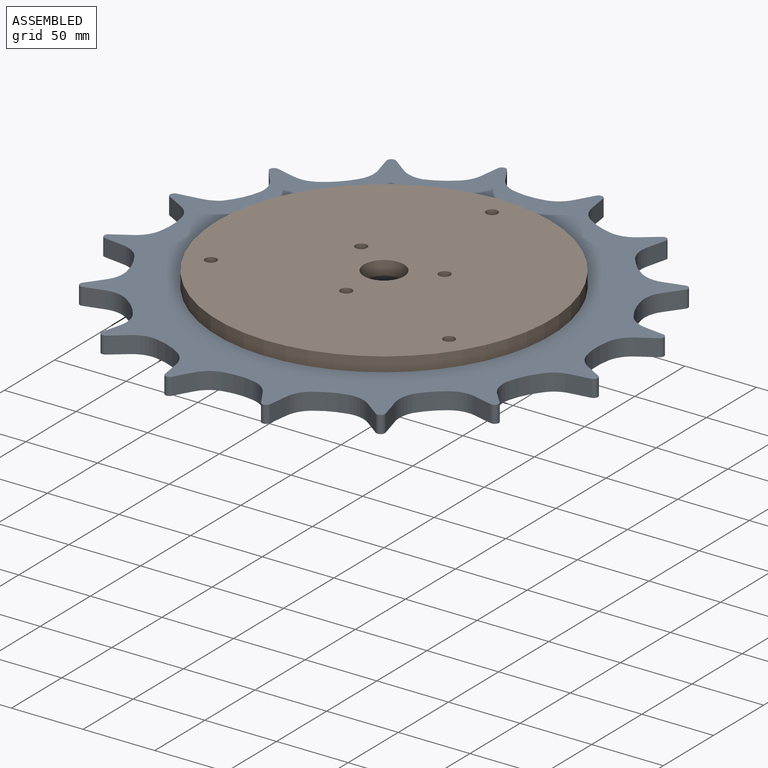
[diagram: assembled view]
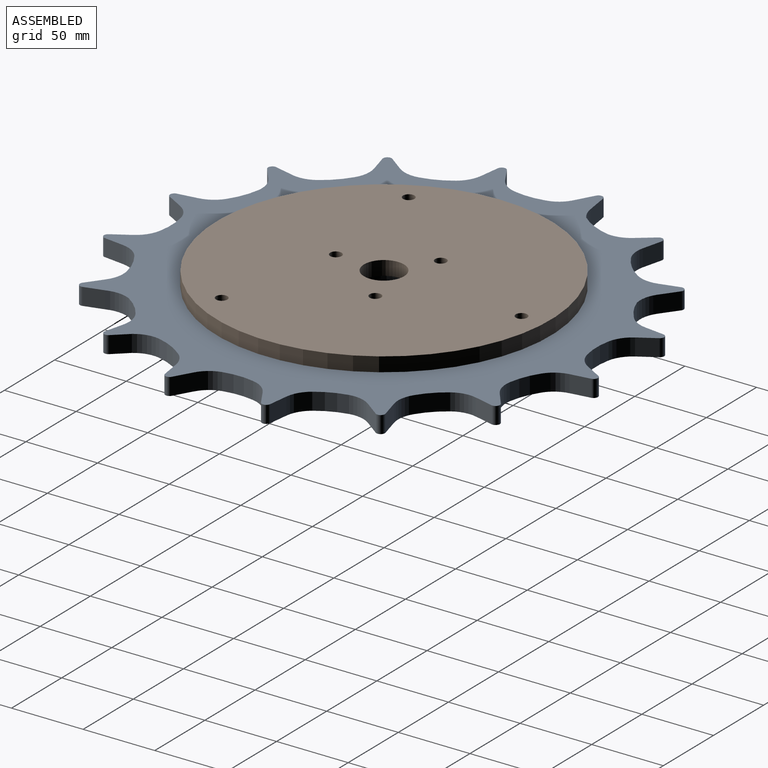
[diagram: assembled view, second angle]
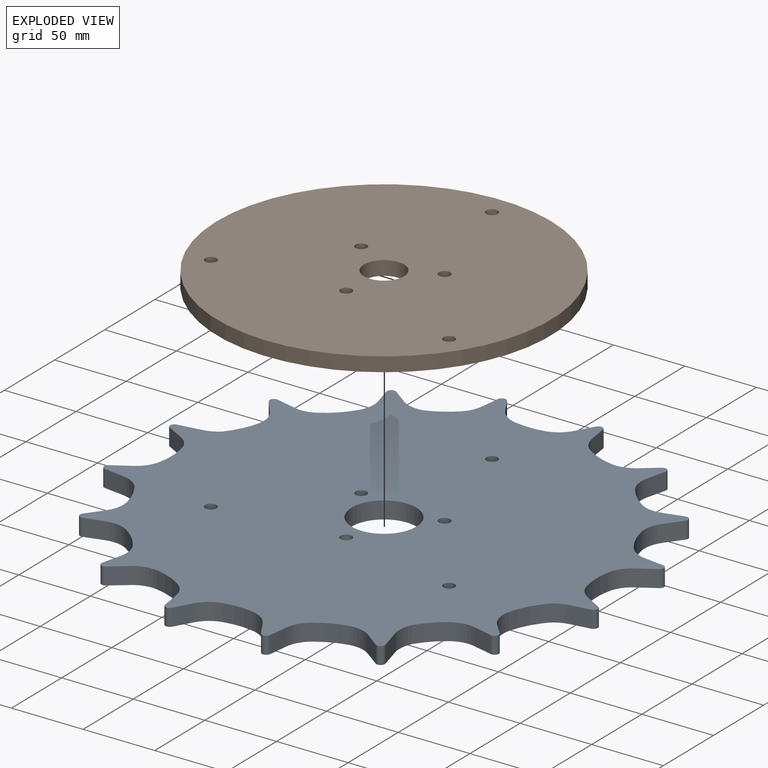
[diagram: exploded view]
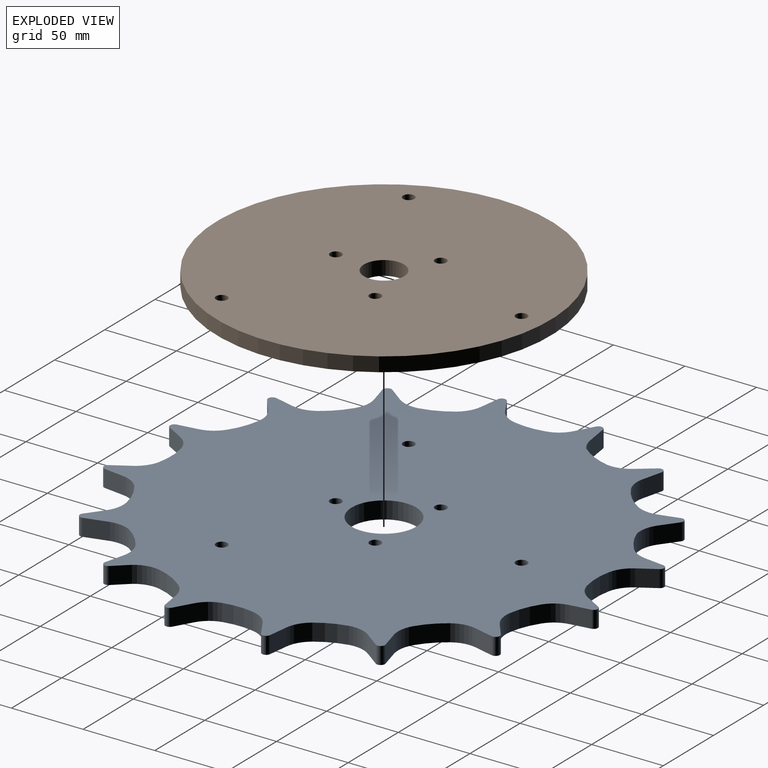
[diagram: exploded view, second angle]
ASSEMBLY  parts=2 mates=2
PART A: 105 faces, bbox 348.9x12x344.8 mm
  f0: plane 13.98x12mm, normal (0.06,0,1), area 168mm2, adj f1,f102,f103,f104
  f1: cylinder r=3mm len=12mm, axis (0,1,0), area 89.1mm2, adj f0,f2,f103,f104
  f2: plane 12x10.47mm, normal (-0.66,0,-0.75), area 168mm2, adj f1,f3,f103,f104
  f3: cylinder r=20mm len=14.62mm, axis (0,1,0), area 198.7mm2, adj f2,f4,f103,f104
  f4: cylinder r=50.8mm len=21.12mm, axis (0,1,0), area 260.3mm2, adj f3,f5,f103,f104
  f5: cylinder r=20mm len=12mm, axis (0,1,0), area 198.7mm2, adj f4,f6,f103,f104
  f6: plane 13.23x12mm, normal (-0.33,0,0.95), area 168mm2, adj f5,f7,f103,f104
  f7: cylinder r=3mm len=12mm, axis (0,1,0), area 89.1mm2, adj f6,f8,f103,f104
  f8: plane 13.23x12mm, normal (-0.33,0,-0.95), area 168mm2, adj f7,f9,f103,f104
  f9: cylinder r=20mm len=12mm, axis (0,1,0), area 198.7mm2, adj f8,f10,f103,f104
  f10: cylinder r=50.8mm len=21.12mm, axis (0,1,0), area 260.3mm2, adj f9,f11,f103,f104
  f11: cylinder r=20mm len=14.62mm, axis (0,1,0), area 198.7mm2, adj f10,f12,f103,f104
  f12: plane 12x10.47mm, normal (-0.66,0,0.75), area 168mm2, adj f11,f13,f103,f104
  f13: cylinder r=3mm len=12mm, axis (0,1,0), area 89.1mm2, adj f12,f14,f103,f104
  f14: plane 13.98x12mm, normal (0.06,0,-1), area 168mm2, adj f13,f15,f103,f104
  f15: cylinder r=20mm len=15.09mm, axis (0,1,0), area 198.7mm2, adj f14,f16,f103,f104
  f16: cylinder r=50.8mm len=17.9mm, axis (0,1,0), area 260.3mm2, adj f15,f17,f103,f104
  f17: cylinder r=20mm len=16.08mm, axis (0,1,0), area 198.7mm2, adj f16,f18,f103,f104
  f18: plane 12.59x12mm, normal (-0.9,0,0.44), area 168mm2, adj f17,f19,f103,f104
  f19: cylinder r=3mm len=12mm, axis (0,1,0), area 89.1mm2, adj f18,f20,f103,f104
  f20: plane 12.59x12mm, normal (0.44,0,-0.9), area 168mm2, adj f19,f21,f103,f104
  f21: cylinder r=20mm len=16.08mm, axis (0,1,0), area 198.7mm2, adj f20,f22,f103,f104
  f22: cylinder r=50.8mm len=17.9mm, axis (0,1,0), area 260.3mm2, adj f21,f23,f103,f104
  f23: cylinder r=20mm len=15.09mm, axis (0,1,0), area 198.7mm2, adj f22,f24,f103,f104
  f24: plane 13.98x12mm, normal (-1,0,0.06), area 168mm2, adj f23,f25,f103,f104
  f25: cylinder r=3mm len=12mm, axis (0,1,0), area 89.1mm2, adj f24,f26,f103,f104
  f26: plane 12x10.47mm, normal (0.75,0,-0.66), area 168mm2, adj f25,f27,f103,f104
  f27: cylinder r=21.66mm len=14.62mm, axis (0,1,0), area 207.7mm2, adj f26,f28,f103,f104
  f28: cylinder r=50.8mm len=21.12mm, axis (0,1,0), area 260.3mm2, adj f27,f29,f103,f104
  f29: cylinder r=20mm len=12mm, axis (0,1,0), area 198.7mm2, adj f28,f30,f103,f104
  f30: plane 13.23x12mm, normal (-0.95,0,-0.33), area 168mm2, adj f29,f31,f103,f104
  f31: cylinder r=3mm len=12mm, axis (0,1,0), area 89.1mm2, adj f30,f32,f103,f104
  f32: plane 12.91x12mm, normal (0.97,0,-0.25), area 160.2mm2, adj f31,f33,f103,f104
  f33: cylinder r=20mm len=12.13mm, axis (0,1,0), area 212.6mm2, adj f32,f34,f103,f104
  f34: cylinder r=50.8mm len=21.12mm, axis (0,1,0), area 257.1mm2, adj f33,f35,f103,f104
  f35: cylinder r=20mm len=14.62mm, axis (0,1,0), area 198.7mm2, adj f34,f36,f103,f104
  f36: plane 12x10.47mm, normal (-0.75,0,-0.66), area 168mm2, adj f35,f37,f103,f104
  f37: cylinder r=3mm len=12mm, axis (0,1,0), area 89.1mm2, adj f36,f38,f103,f104
  f38: plane 13.98x12mm, normal (1,0,0.06), area 168mm2, adj f37,f39,f103,f104
  f39: cylinder r=20mm len=15.09mm, axis (0,1,0), area 198.7mm2, adj f38,f40,f103,f104
  f40: cylinder r=50.8mm len=17.9mm, axis (0,1,0), area 260.3mm2, adj f39,f41,f103,f104
  f41: cylinder r=20mm len=16.08mm, axis (0,1,0), area 198.7mm2, adj f40,f42,f103,f104
  f42: plane 12.59x12mm, normal (-0.44,0,-0.9), area 168mm2, adj f41,f43,f103,f104
  f43: cylinder r=3mm len=12mm, axis (0,1,0), area 89.1mm2, adj f42,f44,f103,f104
  f44: plane 12.59x12mm, normal (0.9,0,0.44), area 168mm2, adj f43,f45,f103,f104
  f45: cylinder r=20mm len=16.08mm, axis (0,1,0), area 198.7mm2, adj f44,f46,f103,f104
  f46: cylinder r=50.8mm len=17.9mm, axis (0,1,0), area 260.3mm2, adj f45,f47,f103,f104
  f47: cylinder r=20mm len=15.09mm, axis (0,1,0), area 198.7mm2, adj f46,f48,f103,f104
  f48: plane 13.98x12mm, normal (-0.06,0,-1), area 168mm2, adj f47,f49,f103,f104
  f49: cylinder r=3mm len=12mm, axis (0,1,0), area 89.1mm2, adj f48,f50,f103,f104
  f50: plane 12x10.47mm, normal (0.66,0,0.75), area 168mm2, adj f49,f51,f103,f104
  f51: cylinder r=20mm len=14.62mm, axis (0,1,0), area 198.7mm2, adj f50,f52,f103,f104
  f52: cylinder r=50.8mm len=21.12mm, axis (0,1,0), area 260.3mm2, adj f51,f53,f103,f104
  f53: cylinder r=20mm len=12mm, axis (0,1,0), area 198.7mm2, adj f52,f54,f103,f104
  f54: plane 13.23x12mm, normal (0.33,0,-0.95), area 168mm2, adj f53,f55,f103,f104
  f55: cylinder r=3mm len=12mm, axis (0,1,0), area 89.1mm2, adj f54,f56,f103,f104
  f56: plane 13.23x12mm, normal (0.33,0,0.95), area 168mm2, adj f55,f57,f103,f104
  f57: cylinder r=20mm len=12mm, axis (0,1,0), area 198.7mm2, adj f56,f58,f103,f104
  f58: cylinder r=50.8mm len=21.12mm, axis (0,1,0), area 260.3mm2, adj f57,f59,f103,f104
  f59: cylinder r=20mm len=14.62mm, axis (0,1,0), area 198.7mm2, adj f58,f60,f103,f104
  f60: plane 12x10.47mm, normal (0.66,0,-0.75), area 168mm2, adj f59,f61,f103,f104
  f61: cylinder r=3mm len=12mm, axis (0,1,0), area 89.1mm2, adj f60,f62,f103,f104
  f62: plane 13.98x12mm, normal (-0.06,0,1), area 168mm2, adj f61,f63,f103,f104
  f63: cylinder r=20mm len=15.09mm, axis (0,1,0), area 198.7mm2, adj f62,f64,f103,f104
  f64: cylinder r=50.8mm len=17.99mm, axis (0,1,0), area 261mm2, adj f63,f65,f103,f104
  f65: cylinder r=20mm len=16.08mm, axis (0,1,0), area 198.7mm2, adj f64,f66,f103,f104
  f66: plane 12.59x12mm, normal (0.9,0,-0.44), area 168mm2, adj f65,f67,f103,f104
  f67: cylinder r=3mm len=12mm, axis (0,1,0), area 89.1mm2, adj f66,f68,f103,f104
  f68: plane 12.59x12mm, normal (-0.44,0,0.9), area 168mm2, adj f67,f69,f103,f104
  f69: cylinder r=20mm len=16.08mm, axis (0,1,0), area 198.7mm2, adj f68,f70,f103,f104
  f70: cylinder r=50.71mm len=16.8mm, axis (0,1,0), area 228.2mm2, adj f69,f71,f103,f104
  f71: cylinder r=20mm len=15.09mm, axis (0,1,0), area 198.7mm2, adj f70,f72,f103,f104
  f72: plane 13.98x12mm, normal (1,0,-0.06), area 168mm2, adj f71,f73,f103,f104
  f73: cylinder r=3mm len=12mm, axis (0,1,0), area 89.1mm2, adj f72,f74,f103,f104
  f74: plane 12x10.47mm, normal (-0.75,0,0.66), area 168mm2, adj f73,f75,f103,f104
  f75: cylinder r=20mm len=14.66mm, axis (0,1,0), area 199.3mm2, adj f74,f76,f103,f104
  f76: cylinder r=50.8mm len=22.74mm, axis (0,1,0), area 281.8mm2, adj f75,f77,f103,f104
  f77: cylinder r=20mm len=12mm, axis (0,1,0), area 190mm2, adj f76,f78,f103,f104
  f78: plane 13.57x12mm, normal (0.95,0,0.33), area 172.3mm2, adj f77,f79,f103,f104
  f79: cylinder r=3mm len=12mm, axis (0,1,0), area 89.1mm2, adj f78,f80,f103,f104
  f80: plane 13.57x12mm, normal (-0.95,0,0.33), area 172.3mm2, adj f79,f81,f103,f104
  f81: cylinder r=20mm len=12mm, axis (0,1,0), area 190mm2, adj f80,f82,f103,f104
  f82: cylinder r=51.06mm len=25.27mm, axis (0,1,0), area 308.6mm2, adj f81,f83,f103,f104
  f83: cylinder r=22.3mm len=12mm, axis (0,1,0), area 138.3mm2, adj f82,f84,f103,f104
  f84: plane 12.18x12mm, normal (0.75,0,0.66), area 195.4mm2, adj f83,f85,f103,f104
  f85: cylinder r=3mm len=12mm, axis (0,1,0), area 89.1mm2, adj f84,f86,f103,f104
  f86: plane 14.54x12mm, normal (-1,0,-0.07), area 175mm2, adj f85,f87,f103,f104
  f87: cylinder r=18.3mm len=14.66mm, axis (0,1,0), area 195.2mm2, adj f86,f88,f103,f104
  f88: cylinder r=50.8mm len=17.9mm, axis (0,1,0), area 260.3mm2, adj f87,f89,f103,f104
  f89: cylinder r=20mm len=16.08mm, axis (0,1,0), area 198.7mm2, adj f88,f90,f103,f104
  f90: plane 12.59x12mm, normal (0.44,0,0.9), area 168mm2, adj f89,f91,f103,f104
  f91: cylinder r=3mm len=12mm, axis (0,1,0), area 91.7mm2, adj f90,f92,f103,f104
  f92: plane 12.52x12mm, normal (-0.9,0,-0.43), area 166.2mm2, adj f91,f93,f103,f104
  f93: cylinder r=19.84mm len=15.87mm, axis (0,1,0), area 196.1mm2, adj f92,f94,f103,f104
  f94: cylinder r=50.8mm len=17.9mm, axis (0,1,0), area 260.3mm2, adj f93,f102,f103,f104
  f95: cylinder r=22.61mm len=45.21mm, axis (0,1,0), area 1704.5mm2, adj f103,f104
  f96: cylinder r=4mm len=12mm, axis (0,1,0), area 301.6mm2, adj f103,f104
  f97: cylinder r=4mm len=12mm, axis (0,1,0), area 301.6mm2, adj f103,f104
  f98: cylinder r=4mm len=12mm, axis (0,1,0), area 301.6mm2, adj f103,f104
  f99: cylinder r=4mm len=12mm, axis (0,1,0), area 301.6mm2, adj f103,f104
  f100: cylinder r=4mm len=12mm, axis (0,1,0), area 301.6mm2, adj f103,f104
  f101: cylinder r=4mm len=12mm, axis (0,1,0), area 301.6mm2, adj f103,f104
  f102: cylinder r=20mm len=15.09mm, axis (0,1,0), area 198.7mm2, adj f0,f94,f103,f104
  f103: plane 348.9x344.84mm, normal (0,-1,0), area 72707.9mm2, adj f0,f1,f2,f3,f4,f5,f6,f7
  f104: plane 348.9x344.84mm, normal (0,1,0), area 72707.9mm2, adj f0,f1,f2,f3,f4,f5,f6,f7
PART B: 10 faces, bbox 233x10x233 mm
  f0: cylinder r=14mm len=28mm, axis (0,1,0), area 879.6mm2, adj f8,f9
  f1: cylinder r=4mm len=10mm, axis (0,1,0), area 251.3mm2, adj f8,f9
  f2: cylinder r=4mm len=10mm, axis (0,1,0), area 251.3mm2, adj f8,f9
  f3: cylinder r=4mm len=10mm, axis (0,1,0), area 251.3mm2, adj f8,f9
  f4: cylinder r=4mm len=10mm, axis (0,1,0), area 251.3mm2, adj f8,f9
  f5: cylinder r=4mm len=10mm, axis (0,1,0), area 251.3mm2, adj f8,f9
  f6: cylinder r=4mm len=10mm, axis (0,1,0), area 251.3mm2, adj f8,f9
  f7: cylinder r=116.5mm len=233mm, axis (0,1,0), area 7319.9mm2, adj f8,f9
  f8: plane 233x233mm, normal (0,-1,0), area 41721.1mm2, adj f0,f1,f2,f3,f4,f5,f6,f7
  f9: plane 233x233mm, normal (0,1,0), area 41721.1mm2, adj f0,f1,f2,f3,f4,f5,f6,f7
PLACE A rot(axis=(-0.79,-0.43,0.43),103.1deg) t=(0,0,-22)mm
PLACE B rot(axis=(-1,0.03,-0.03),90deg) t=(0,0,-10)mm
MATE revolute A.f95 <-> B.f0  axis (0,0,1) through (0,0,-10)mm
MATE cylindrical B.f3 <-> A.f101  axis (0,0,-1) through (-89.21,-45.18,-10)mm
